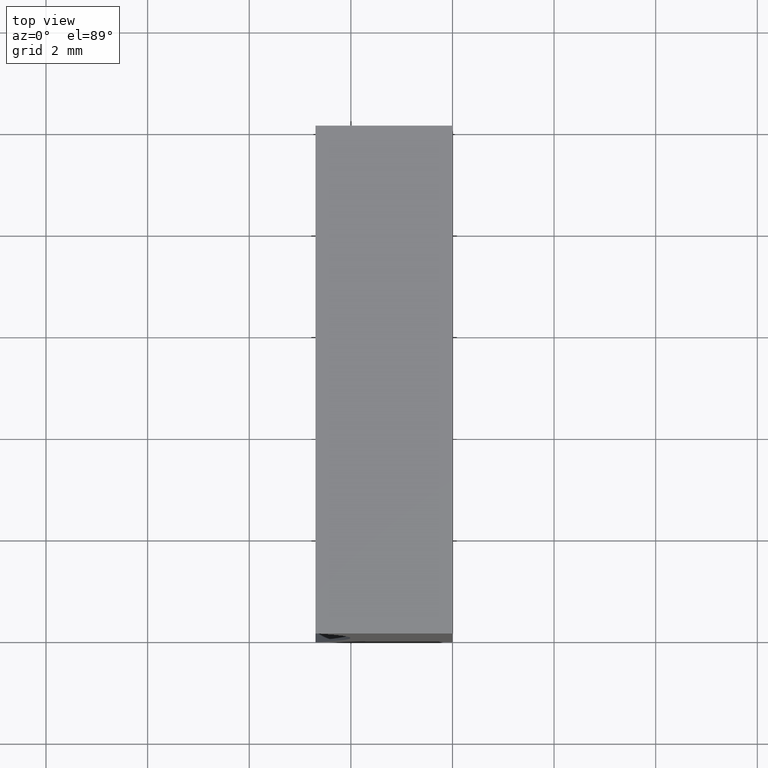
[diagram: clean part render]
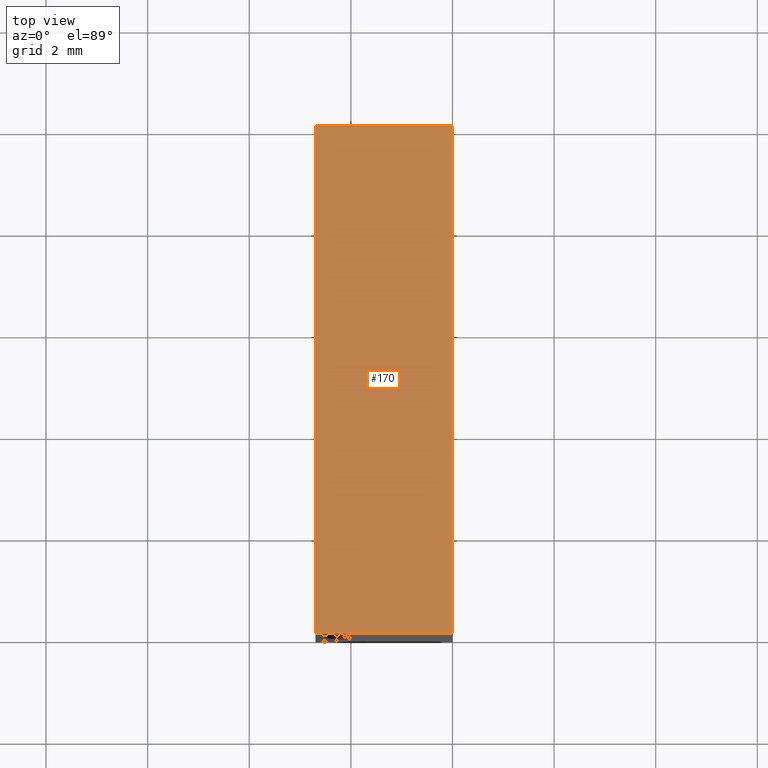
[diagram: same view with one face highlighted and labeled with its STEP entity id]
A machine part, top view. The second image highlights one B-rep face of the part: STEP entity #170.
In plain terms, the highlighted planar face has unit normal (-0, 0, -1).
Its self-contained STEP definition (entity closure, byte-faithful):
#1 = CARTESIAN_POINT ( 'NONE',  ( -2.695517028860108200, 10.00000000000000000, 10.00000000000000200 ) ) ;
#3 = LINE ( 'NONE', #188, #68 ) ;
#12 = FACE_OUTER_BOUND ( 'NONE', #57, .T. ) ;
#16 = DIRECTION ( 'NONE',  ( 1.000000000000000000, -0.0000000000000000000, -6.435587152311161100E-016 ) ) ;
#30 = AXIS2_PLACEMENT_3D ( 'NONE', #54, #111, #69 ) ;
#37 = CARTESIAN_POINT ( 'NONE',  ( 6.123233995736766300E-016, 10.00000000000000000, 10.00000000000000000 ) ) ;
#39 = LINE ( 'NONE', #1, #55 ) ;
#51 = LINE ( 'NONE', #37, #76 ) ;
#54 = CARTESIAN_POINT ( 'NONE',  ( 6.123233995736766300E-016, 10.00000000000000000, 10.00000000000000000 ) ) ;
#55 = VECTOR ( 'NONE', #182, 1000.000000000000000 ) ;
#57 = EDGE_LOOP ( 'NONE', ( #178, #72, #185, #190 ) ) ;
#66 = VERTEX_POINT ( 'NONE', #131 ) ;
#68 = VECTOR ( 'NONE', #16, 1000.000000000000000 ) ;
#69 = DIRECTION ( 'NONE',  ( -1.000000000000000000, 0.0000000000000000000, 6.435587152311161100E-016 ) ) ;
#72 = ORIENTED_EDGE ( 'NONE', *, *, #193, .F. ) ;
#76 = VECTOR ( 'NONE', #184, 1000.000000000000000 ) ;
#78 = LINE ( 'NONE', #154, #82 ) ;
#82 = VECTOR ( 'NONE', #175, 1000.000000000000000 ) ;
#98 = CARTESIAN_POINT ( 'NONE',  ( 6.123233995736766300E-016, 10.00000000000000000, 10.00000000000000000 ) ) ;
#105 = VERTEX_POINT ( 'NONE', #196 ) ;
#111 = DIRECTION ( 'NONE',  ( -6.435587152311161100E-016, 0.0000000000000000000, -1.000000000000000000 ) ) ;
#124 = EDGE_CURVE ( 'NONE', #181, #180, #3, .T. ) ;
#131 = CARTESIAN_POINT ( 'NONE',  ( -2.695517028860108200, 0.0000000000000000000, 10.00000000000000200 ) ) ;
#135 = EDGE_CURVE ( 'NONE', #181, #66, #39, .T. ) ;
#137 = CARTESIAN_POINT ( 'NONE',  ( -2.695517028860108200, 10.00000000000000000, 10.00000000000000200 ) ) ;
#154 = CARTESIAN_POINT ( 'NONE',  ( 6.123233995736766300E-016, 0.0000000000000000000, 10.00000000000000000 ) ) ;
#170 = ADVANCED_FACE ( 'NONE', ( #12 ), #173, .F. ) ;
#173 = PLANE ( 'NONE',  #30 ) ;
#175 = DIRECTION ( 'NONE',  ( 1.000000000000000000, -0.0000000000000000000, -6.435587152311161100E-016 ) ) ;
#178 = ORIENTED_EDGE ( 'NONE', *, *, #199, .T. ) ;
#180 = VERTEX_POINT ( 'NONE', #98 ) ;
#181 = VERTEX_POINT ( 'NONE', #137 ) ;
#182 = DIRECTION ( 'NONE',  ( -0.0000000000000000000, -1.000000000000000000, -0.0000000000000000000 ) ) ;
#184 = DIRECTION ( 'NONE',  ( -0.0000000000000000000, -1.000000000000000000, -0.0000000000000000000 ) ) ;
#185 = ORIENTED_EDGE ( 'NONE', *, *, #124, .F. ) ;
#188 = CARTESIAN_POINT ( 'NONE',  ( 6.123233995736766300E-016, 10.00000000000000000, 10.00000000000000000 ) ) ;
#190 = ORIENTED_EDGE ( 'NONE', *, *, #135, .T. ) ;
#193 = EDGE_CURVE ( 'NONE', #180, #105, #51, .T. ) ;
#196 = CARTESIAN_POINT ( 'NONE',  ( 6.123233995736766300E-016, 0.0000000000000000000, 10.00000000000000000 ) ) ;
#199 = EDGE_CURVE ( 'NONE', #66, #105, #78, .T. ) ;